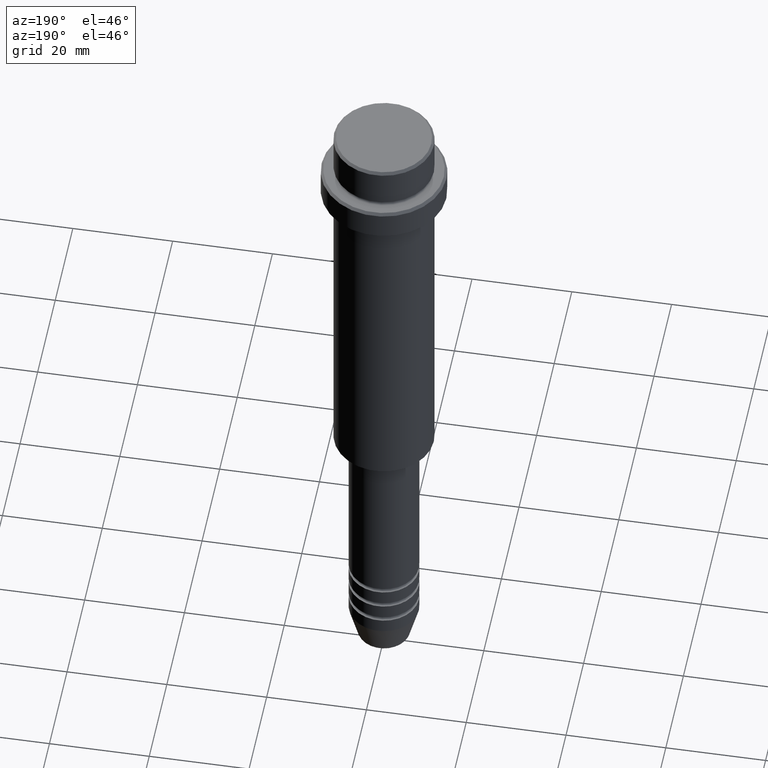
[diagram: clean part render]
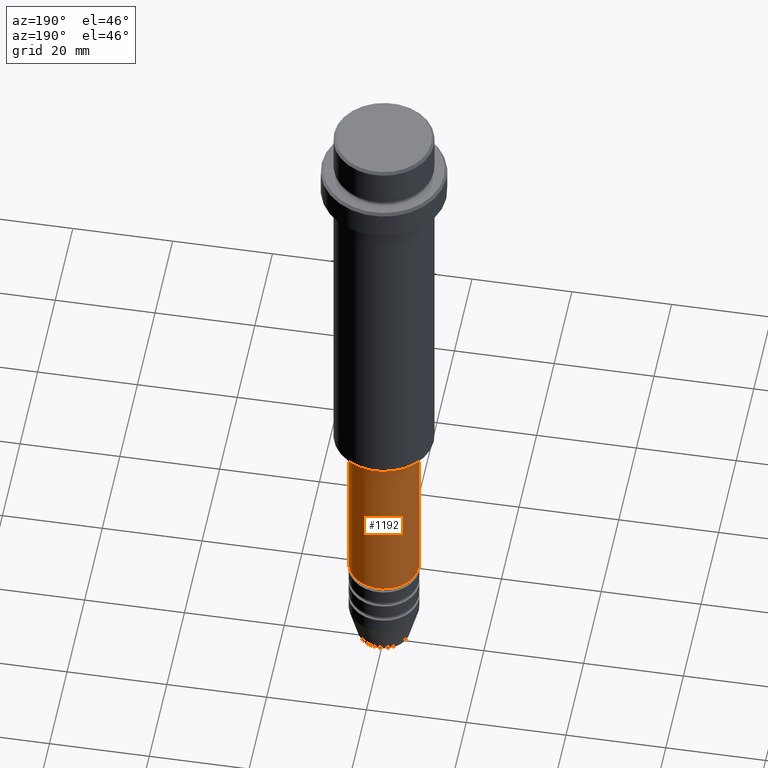
[diagram: same view with one face highlighted and labeled with its STEP entity id]
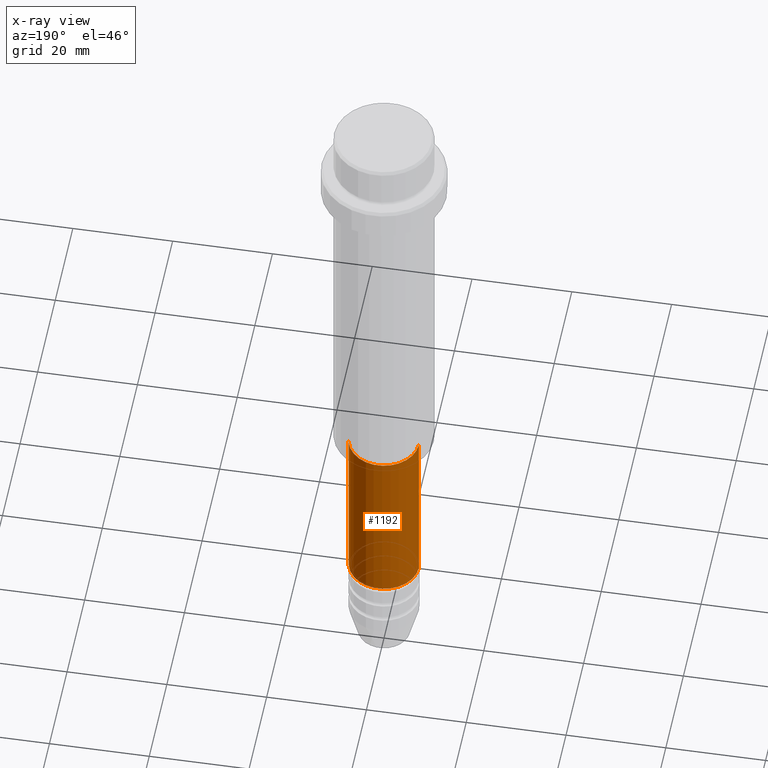
[diagram: x-ray of the same camera — body ghosted, the highlighted face saturated]
A machine part, auxiliary view. The second image highlights one B-rep face of the part: STEP entity #1192.
The next image is the same camera in x-ray: the body ghosted, the highlighted face saturated — about 0% of this face is hidden behind the body in this view.
In plain terms, the highlighted cylindrical surface (edge-blend (fillet) strip) has radius 7 mm, axis along (-0, -0, 1).
Its self-contained STEP definition (entity closure, byte-faithful):
#3 = VERTEX_POINT ( 'NONE', #660 ) ;
#5 = FACE_OUTER_BOUND ( 'NONE', #1334, .T. ) ;
#76 = LINE ( 'NONE', #722, #560 ) ;
#138 = DIRECTION ( 'NONE',  ( 1.000000000000000000, 0.000000000000000000, 0.000000000000000000 ) ) ;
#161 = DIRECTION ( 'NONE',  ( -0.000000000000000000, -0.000000000000000000, 1.000000000000000000 ) ) ;
#191 = CARTESIAN_POINT ( 'NONE',  ( 7.000000000000000000, 0.000000000000000000, -120.9999999999999005 ) ) ;
#347 = VERTEX_POINT ( 'NONE', #191 ) ;
#390 = LINE ( 'NONE', #594, #580 ) ;
#420 = CIRCLE ( 'NONE', #711, 7.000000000000000000 ) ;
#530 = EDGE_CURVE ( 'NONE', #347, #840, #420, .T. ) ;
#560 = VECTOR ( 'NONE', #1170, 1000.000000000000000 ) ;
#580 = VECTOR ( 'NONE', #1035, 1000.000000000000000 ) ;
#594 = CARTESIAN_POINT ( 'NONE',  ( 7.000000000000000000, 0.000000000000000000, 0.000000000000000000 ) ) ;
#606 = CARTESIAN_POINT ( 'NONE',  ( 0.000000000000000000, 0.000000000000000000, -86.00000000000001421 ) ) ;
#633 = CARTESIAN_POINT ( 'NONE',  ( 0.000000000000000000, 0.000000000000000000, 0.000000000000000000 ) ) ;
#660 = CARTESIAN_POINT ( 'NONE',  ( 7.000000000000000000, 0.000000000000000000, -86.00000000000001421 ) ) ;
#697 = DIRECTION ( 'NONE',  ( -0.000000000000000000, -0.000000000000000000, 1.000000000000000000 ) ) ;
#711 = AXIS2_PLACEMENT_3D ( 'NONE', #1247, #161, #138 ) ;
#722 = CARTESIAN_POINT ( 'NONE',  ( -7.000000000000000000, 8.572527594031473190E-16, 0.000000000000000000 ) ) ;
#750 = CYLINDRICAL_SURFACE ( 'NONE', #1413, 7.000000000000000000 ) ;
#756 = DIRECTION ( 'NONE',  ( 1.000000000000000000, 0.000000000000000000, 0.000000000000000000 ) ) ;
#840 = VERTEX_POINT ( 'NONE', #1133 ) ;
#858 = CARTESIAN_POINT ( 'NONE',  ( -7.000000000000000000, 8.572527594031473190E-16, -86.00000000000001421 ) ) ;
#924 = CIRCLE ( 'NONE', #1300, 7.000000000000000000 ) ;
#952 = DIRECTION ( 'NONE',  ( -0.000000000000000000, -0.000000000000000000, 1.000000000000000000 ) ) ;
#957 = ORIENTED_EDGE ( 'NONE', *, *, #1042, .F. ) ;
#989 = ORIENTED_EDGE ( 'NONE', *, *, #1052, .T. ) ;
#1035 = DIRECTION ( 'NONE',  ( -0.000000000000000000, -0.000000000000000000, 1.000000000000000000 ) ) ;
#1042 = EDGE_CURVE ( 'NONE', #3, #1240, #924, .T. ) ;
#1052 = EDGE_CURVE ( 'NONE', #840, #1240, #76, .T. ) ;
#1058 = ORIENTED_EDGE ( 'NONE', *, *, #1061, .F. ) ;
#1061 = EDGE_CURVE ( 'NONE', #347, #3, #390, .T. ) ;
#1133 = CARTESIAN_POINT ( 'NONE',  ( -7.000000000000000000, 8.572527594031473190E-16, -120.9999999999999005 ) ) ;
#1170 = DIRECTION ( 'NONE',  ( -0.000000000000000000, -0.000000000000000000, 1.000000000000000000 ) ) ;
#1192 = ADVANCED_FACE ( 'NONE', ( #5 ), #750, .T. ) ;
#1218 = ORIENTED_EDGE ( 'NONE', *, *, #530, .T. ) ;
#1240 = VERTEX_POINT ( 'NONE', #858 ) ;
#1247 = CARTESIAN_POINT ( 'NONE',  ( 0.000000000000000000, 0.000000000000000000, -120.9999999999999005 ) ) ;
#1263 = DIRECTION ( 'NONE',  ( 1.000000000000000000, 0.000000000000000000, 0.000000000000000000 ) ) ;
#1300 = AXIS2_PLACEMENT_3D ( 'NONE', #606, #697, #1263 ) ;
#1334 = EDGE_LOOP ( 'NONE', ( #1218, #989, #957, #1058 ) ) ;
#1413 = AXIS2_PLACEMENT_3D ( 'NONE', #633, #952, #756 ) ;